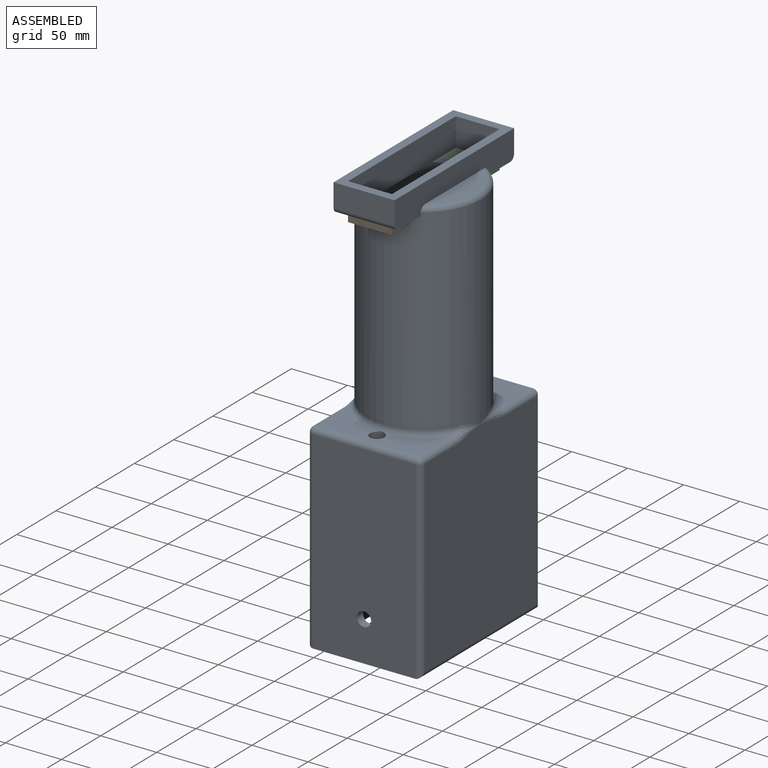
[diagram: assembled view]
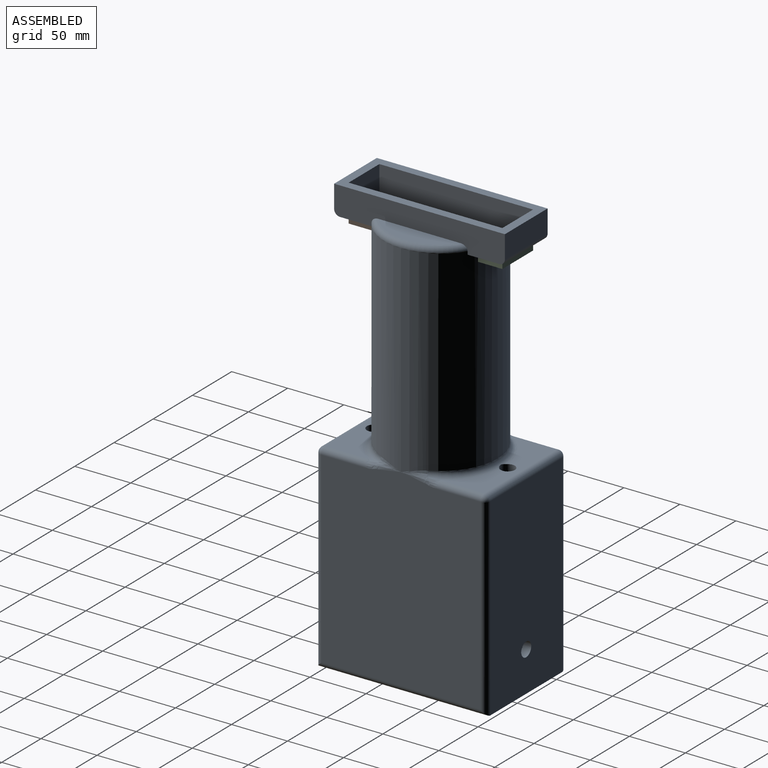
[diagram: assembled view, second angle]
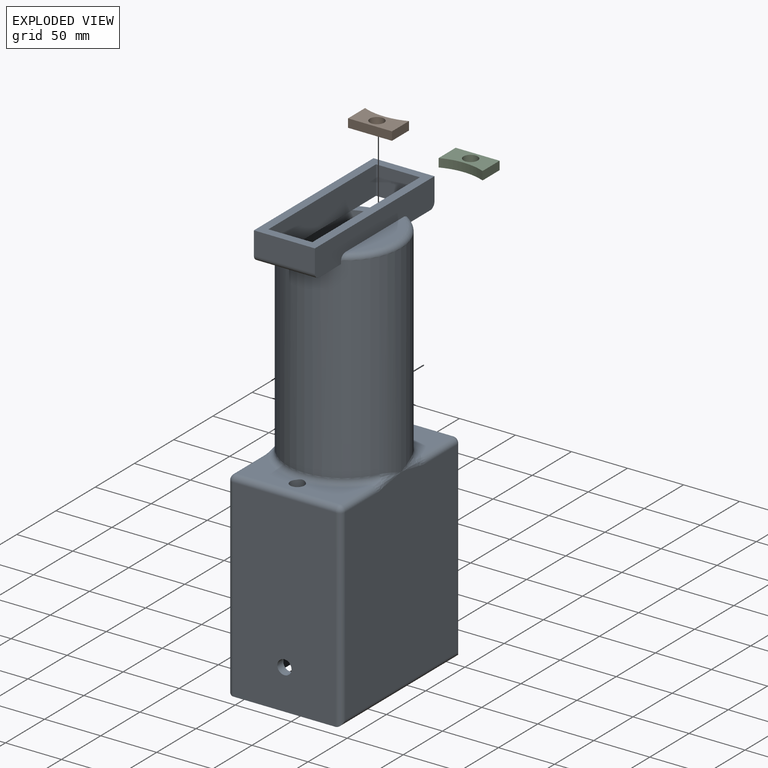
[diagram: exploded view]
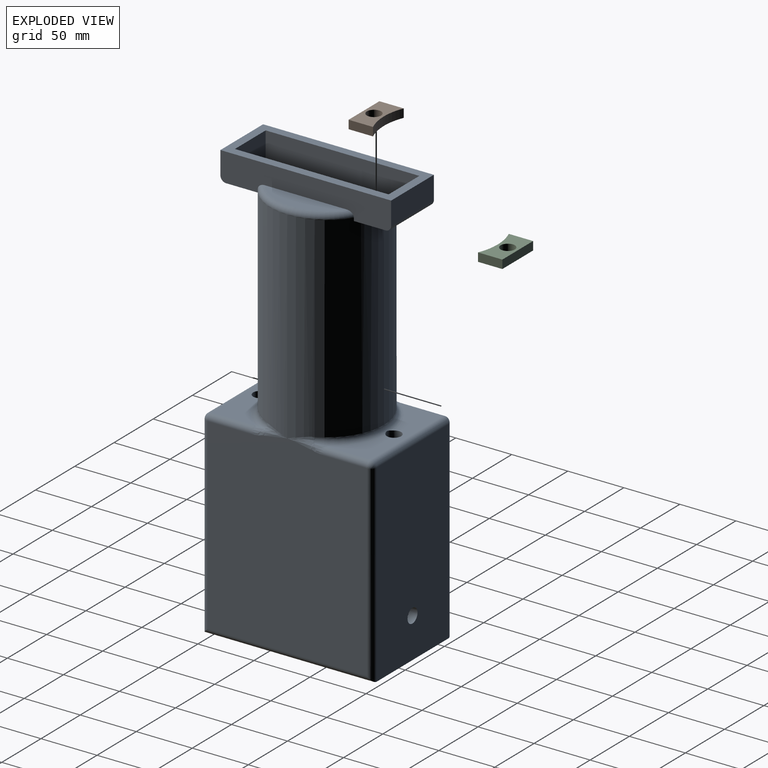
[diagram: exploded view, second angle]
ASSEMBLY  parts=3 mates=2
PART A: 70 faces, bbox 118.6x153.9x382.5 mm
  f0: torus R=55.88mm, axis (0,0,1), area 911.2mm2, adj f7,f9,f38,f39,f43,f47,f69
  f1: torus R=55.88mm, axis (0,0,1), area 911.2mm2, adj f7,f8,f40,f41,f52,f63,f68
  f2: plane 39.19x12.32mm, normal (0,0,1), area 308.1mm2, adj f6,f7,f28,f30
  f3: plane 39.19x12.32mm, normal (0,0,1), area 308.1mm2, adj f6,f7,f28,f30
  f4: plane 170.18x137.16mm, normal (1,0,0), area 23341.9mm2, adj f10,f15,f16,f17,f18
  f5: plane 170.18x137.16mm, normal (-1,0,0), area 23341.9mm2, adj f10,f15,f16,f17,f18
  f6: cylinder r=43.18mm len=185.42mm, axis (0,0,-1), area 50305.9mm2, adj f2,f3,f17,f18,f20,f21
  f7: cylinder r=50.8mm len=180.34mm, axis (0,0,-1), area 55870.5mm2, adj f0,f1,f2,f3,f23,f24,f25,f33
  f8: plane 91.44x38.99mm, normal (0,0,1), area 1932.7mm2, adj f1,f55,f61,f65,f68
  f9: plane 91.44x38.99mm, normal (0,0,1), area 1932.7mm2, adj f0,f44,f50,f51,f69
  f10: plane 170.18x86.36mm, normal (0,-1,0), area 14570.1mm2, adj f4,f5,f16,f17,f35
  f11: plane 172.72x142.24mm, normal (-1,0,0), area 24008.3mm2, adj f42,f43,f44,f48,f49,f52,f53,f55
  f12: plane 172.72x91.44mm, normal (0,-1,0), area 15666.8mm2, adj f16,f34,f49,f50,f57
  f13: plane 172.72x142.24mm, normal (1,0,0), area 24008.3mm2, adj f45,f47,f51,f57,f59,f60,f62,f63
  f14: plane 172.72x91.44mm, normal (0,1,0), area 15666.8mm2, adj f16,f35,f56,f61,f62
  f15: plane 170.18x86.36mm, normal (0,1,0), area 14570.1mm2, adj f4,f5,f16,f18,f34
  f16: plane 152.4x91.44mm, normal (0,0,-1), area 2090.3mm2, adj f4,f5,f10,f12,f14,f15,f53,f59
  f17: plane 86.36x68.58mm, normal (0,0,-1), area 2867.1mm2, adj f4,f5,f6,f10,f68
  f18: plane 86.36x68.58mm, normal (0,0,-1), area 2867.1mm2, adj f4,f5,f6,f15,f69
  f19: plane 73.48x18.51mm, normal (0,0,1), area 950.9mm2, adj f24,f36
  f20: plane 76.96x23.59mm, normal (0,0,-1), area 1296.6mm2, adj f6,f28
  f21: plane 76.96x23.59mm, normal (0,0,-1), area 1296.6mm2, adj f6,f30
  f22: plane 73.48x18.51mm, normal (0,0,1), area 950.9mm2, adj f25,f37
  f23: plane 54.43x28.22mm, normal (0,0,-1), area 497.3mm2, adj f7,f24,f25,f28,f29,f30,f66
  f24: plane 153.93x26.93mm, normal (-1,0,0), area 3219.4mm2, adj f7,f19,f23,f26,f27,f32,f33,f36
  f25: plane 153.93x26.93mm, normal (1,0,0), area 3219.4mm2, adj f7,f22,f23,f26,f27,f32,f33,f37
  f26: plane 54.43x20.32mm, normal (0,1,0), area 1106mm2, adj f24,f25,f32,f66
  f27: plane 54.43x20.32mm, normal (0,-1,0), area 1106mm2, adj f24,f25,f32,f67
  f28: plane 137.16x25.4mm, normal (1,0,0), area 3483.9mm2, adj f2,f3,f20,f23,f29,f31,f32,f33
  f29: plane 39.19x25.4mm, normal (0,-1,0), area 995.4mm2, adj f23,f28,f30,f32
  f30: plane 137.16x25.4mm, normal (-1,0,0), area 3483.9mm2, adj f2,f3,f21,f23,f29,f31,f32,f33
  f31: plane 39.19x25.4mm, normal (0,1,0), area 995.4mm2, adj f28,f30,f32,f33
  f32: plane 152.4x54.43mm, normal (0,0,1), area 2919.8mm2, adj f24,f25,f26,f27,f28,f29,f30,f31
  f33: plane 54.43x28.22mm, normal (0,0,-1), area 497.3mm2, adj f7,f24,f25,f28,f30,f31,f67
  f34: cylinder r=6.35mm len=12.7mm, axis (0,1,0), area 304mm2, adj f12,f15
  f35: cylinder r=6.35mm len=12.7mm, axis (0,1,0), area 304mm2, adj f10,f14
  f36: torus R=45.72mm, axis (0,0,1), area 757.8mm2, adj f7,f19,f24
  f37: torus R=45.72mm, axis (0,0,1), area 757.8mm2, adj f7,f22,f25
  f38: bspline ~24.48x5.61mm, area 63.1mm2, adj f0,f7,f45
  f39: bspline ~24.48x5.61mm, area 63.1mm2, adj f0,f7,f42
  f40: bspline ~24.48x5.61mm, area 63.1mm2, adj f1,f7,f48
  f41: bspline ~24.48x5.61mm, area 63.1mm2, adj f1,f7,f60
  f42: bspline ~22.12x4.5mm, area 54.1mm2, adj f11,f39,f43
  f43: bspline ~15.79x6.41mm, area 70mm2, adj f0,f11,f42,f44
  f44: cylinder r=5.08mm len=38.99mm, axis (0,-1,0), area 311.1mm2, adj f9,f11,f43,f46
  f45: bspline ~23.09x4.74mm, area 36.6mm2, adj f13,f38,f47
  f46: sphere r=5.08mm, area 40.5mm2, adj f44,f49,f50
  f47: bspline ~20.6x6.97mm, area 70mm2, adj f0,f13,f45,f51
  f48: bspline ~23.09x4.74mm, area 36.6mm2, adj f11,f40,f52
  f49: cylinder r=5.08mm len=172.72mm, axis (0,0,-1), area 1358mm2, adj f11,f12,f46,f53
  f50: cylinder r=5.08mm len=91.44mm, axis (1,0,0), area 729.7mm2, adj f9,f12,f46,f54
  f51: cylinder r=5.08mm len=38.99mm, axis (0,1,0), area 311.1mm2, adj f9,f13,f47,f54
  f52: bspline ~17.38x6.41mm, area 70mm2, adj f1,f11,f48,f55
  f53: cylinder r=5.08mm len=152.4mm, axis (0,1,0), area 1175.6mm2, adj f11,f16,f49,f56
  f54: sphere r=5.08mm, area 40.5mm2, adj f50,f51,f57
  f55: cylinder r=5.08mm len=38.99mm, axis (0,-1,0), area 311.1mm2, adj f8,f11,f52,f58
  f56: cylinder r=5.08mm len=172.72mm, axis (0,0,1), area 1358mm2, adj f11,f14,f53,f58
  f57: cylinder r=5.08mm len=172.72mm, axis (0,0,1), area 1358mm2, adj f12,f13,f54,f59
  f58: sphere r=5.08mm, area 55.3mm2, adj f55,f56,f61
  f59: cylinder r=5.08mm len=152.4mm, axis (0,-1,0), area 1175.6mm2, adj f13,f16,f57,f62
  f60: bspline ~23.09x4.74mm, area 54.1mm2, adj f13,f41,f63
  f61: cylinder r=5.08mm len=91.44mm, axis (-1,0,0), area 729.7mm2, adj f8,f14,f58,f64
  f62: cylinder r=5.08mm len=172.72mm, axis (0,0,-1), area 1358mm2, adj f13,f14,f59,f64
  f63: bspline ~19.01x6.97mm, area 70mm2, adj f1,f13,f60,f65
  f64: sphere r=5.08mm, area 25.8mm2, adj f61,f62,f65
  f65: cylinder r=5.08mm len=38.99mm, axis (0,1,0), area 311.1mm2, adj f8,f13,f63,f64
  f66: cylinder r=5.08mm len=54.43mm, axis (-1,0,0), area 434.3mm2, adj f23,f24,f25,f26
  f67: cylinder r=5.08mm len=54.43mm, axis (1,0,0), area 434.3mm2, adj f24,f25,f27,f33
  f68: cylinder r=6.35mm len=12.7mm, axis (0,0,1), area 304mm2, adj f1,f8,f17
  f69: cylinder r=6.35mm len=12.7mm, axis (0,0,1), area 304mm2, adj f0,f9,f18
PART B: 7 faces, bbox 39.2x21.7x7.6 mm
  f0: cylinder r=50.8mm len=39.19mm, axis (0,0,1), area 306.6mm2, adj f1,f3,f4,f5
  f1: plane 21.71x7.62mm, normal (-1,0,0), area 165.4mm2, adj f0,f2,f4,f5
  f2: plane 39.19x7.62mm, normal (0,-1,0), area 298.6mm2, adj f1,f3,f4,f5
  f3: plane 21.71x7.62mm, normal (1,0,0), area 165.4mm2, adj f0,f2,f4,f5
  f4: plane 39.19x21.71mm, normal (0,0,-1), area 620.6mm2, adj f0,f1,f2,f3,f6
  f5: plane 39.19x21.71mm, normal (0,0,1), area 620.6mm2, adj f0,f1,f2,f3,f6
  f6: cylinder r=6.35mm len=12.7mm, axis (0,0,-1), area 304mm2, adj f4,f5
PART C: 7 faces, bbox 39.2x21.7x7.6 mm
  f0: plane 21.71x7.62mm, normal (1,0,0), area 165.4mm2, adj f1,f3,f4,f5
  f1: plane 39.19x7.62mm, normal (0,1,0), area 298.6mm2, adj f0,f2,f4,f5
  f2: plane 21.71x7.62mm, normal (-1,0,0), area 165.4mm2, adj f1,f3,f4,f5
  f3: cylinder r=50.8mm len=39.19mm, axis (0,0,1), area 306.6mm2, adj f0,f2,f4,f5
  f4: plane 39.19x21.71mm, normal (0,0,-1), area 620.6mm2, adj f0,f1,f2,f3,f6
  f5: plane 39.19x21.71mm, normal (0,0,1), area 620.6mm2, adj f0,f1,f2,f3,f6
  f6: cylinder r=6.35mm len=12.7mm, axis (0,0,-1), area 304mm2, adj f4,f5
PLACE A t=(-6,27.63,-20.3)mm
PLACE B t=(-6,27.63,-20.3)mm
PLACE C t=(-6,27.63,-20.3)mm
MATE fastened A.f23 <-> C.f5  axis (0,0,-1) through (-6,96.21,157.5)mm
MATE fastened B.f5 <-> A.f33  axis (0,0,1) through (-6,-40.95,157.5)mm
